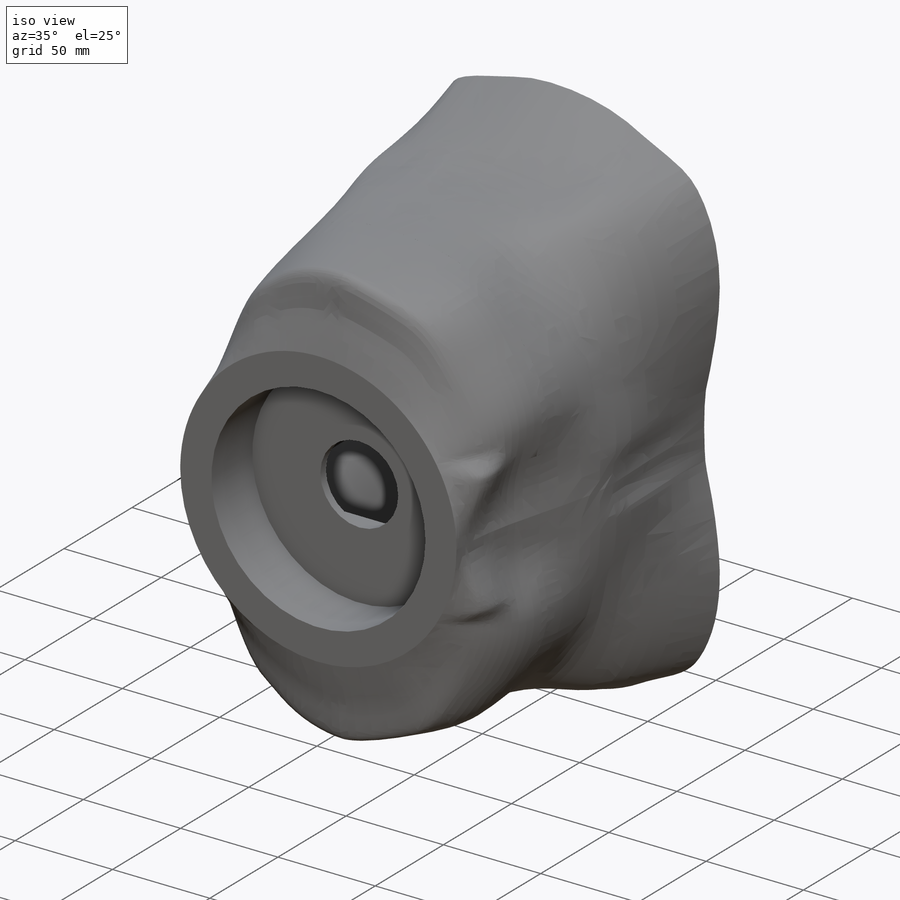
[diagram: iso view]
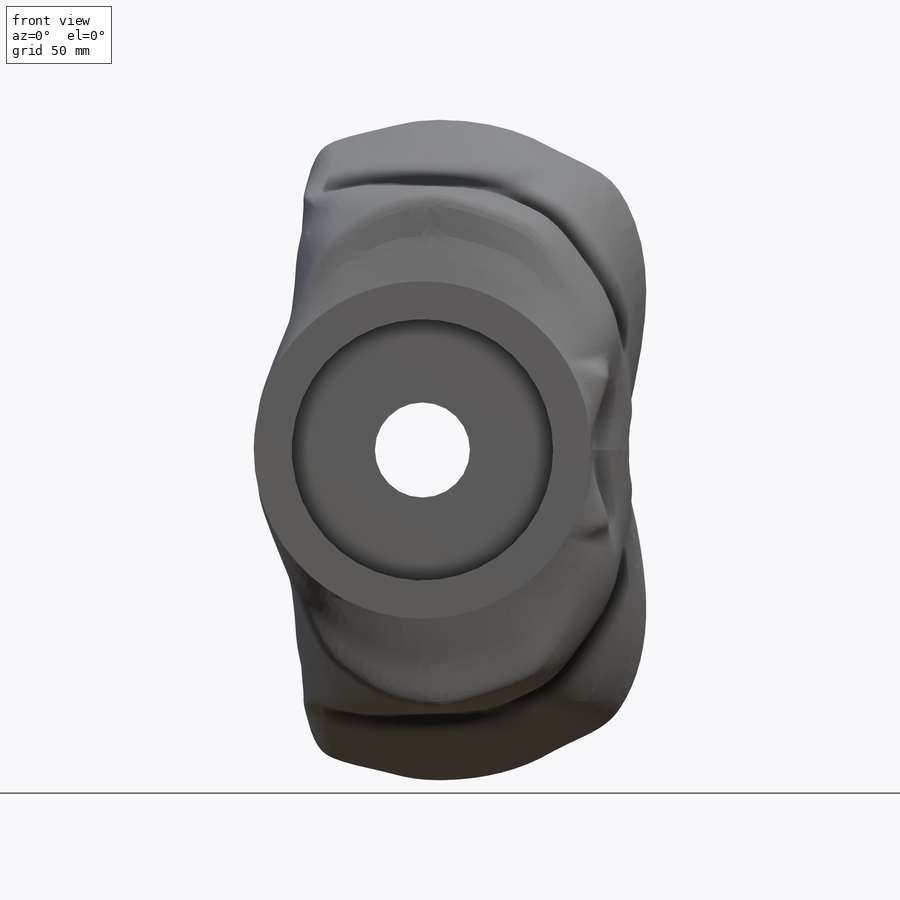
[diagram: front view]
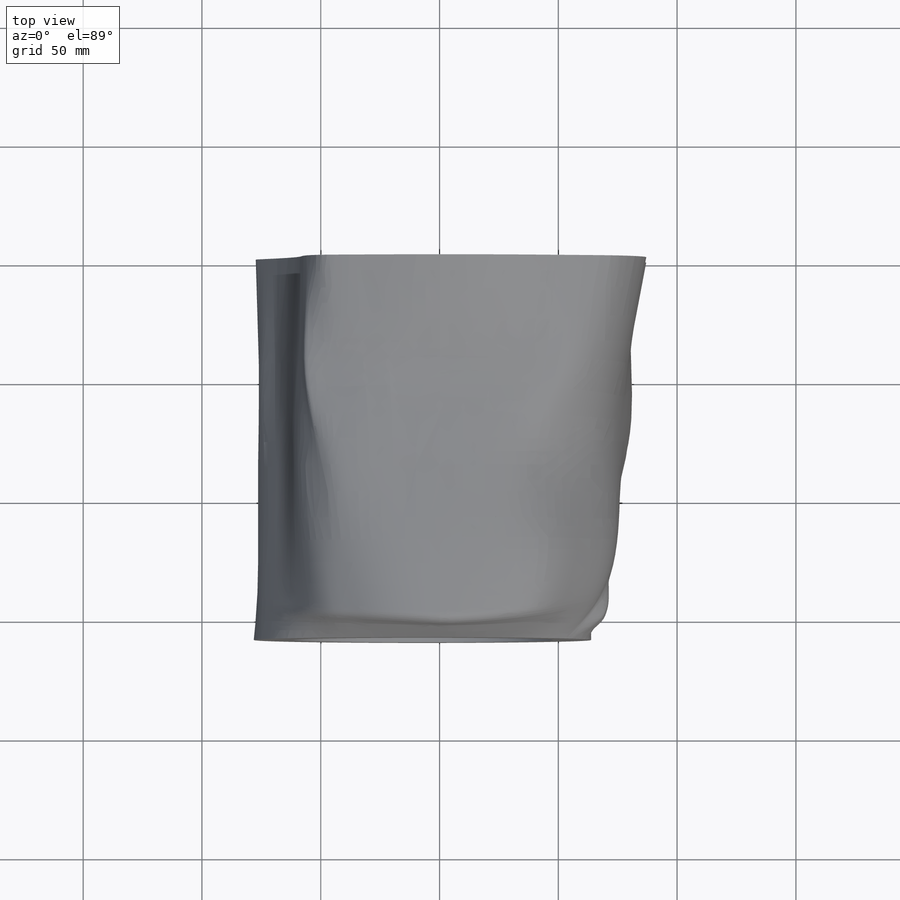
[diagram: top view]
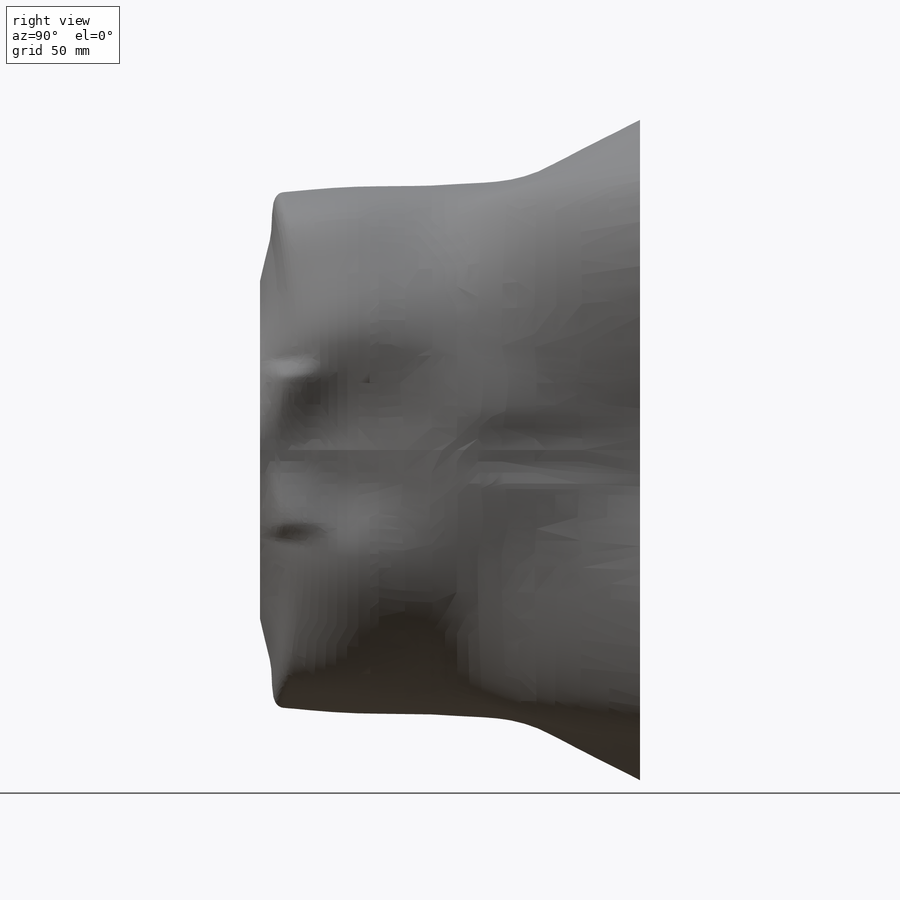
[diagram: right view]
SOLIDWORKS PART (.sldprt)
format: sldprt  version: not decoded by parser v0  size: 5,671,936 bytes
history: native  units: mm
features: sketch x29, extrude x11, plane x10, cut_extrude x8, mirror x4, material x1, move_body x1, shell x1, hole x1, fillet x1 + 1 further entry (+19 scaffold rows collapsed; 5 parser-record rows omitted)
feature tree (92):
  scaffold x19  (default folders/planes/origin — collapsed)
  material  "Material <not specified>"
  "middle section"
  parser-record x5  (decoder bookkeeping rows leaked as tree rows — omitted from the tree; the rows remain in map.json)
  move_body  "Body-Move/Copy2"
  sketch  "Sketch1"
  plane  "Plane1"  Offset=40mm
  plane  "Plane2"  Offset=80mm
  plane  "Plane3"  Offset=120mm
  plane  "Plane9"  Offset=30mm
  plane  "Plane4"  Offset=160mm
  plane  "Plane5"  Offset=200mm
  plane  "Plane6"  Offset=240mm
  plane  "Plane7"  Offset=280mm
  sketch  "Sketch9"
  sketch  "Sketch8"
  sketch  "Sketch6"
  sketch  "Sketch4"
  sketch  "Sketch2"  dims[D1=142.0mm]
  sketch  "Sketch3"
  plane  "Plane8"  Offset=30mm
  sketch  "Sketch7"
  mirror  "Mirror5"
  shell  "Shell1"  Thickness=4mm
  sketch  "Sketch10"  dims[D1=110.0mm]
  cut_extrude  "Extrude1"  Depth=30mm
  sketch  "Sketch11"  dims[D1=40.0mm]
  cut_extrude  "Extrude2"  Depth=60mm
  sketch  "Sketch12"  dims[D1=88.5mm D2=32.3mm D3=126.0mm D4=26.0mm]
  cut_extrude  "Extrude3"  Depth=16mm
  sketch  "Sketch13"  dims[D1=60.0mm]
  extrude  "Extrude4"  Depth=10mm
  sketch  "Sketch14"  dims[D1=0.0mm]
  extrude  "Extrude8"  [1 undecoded]
  sketch  "Sketch15"  dims[D1=10.2mm]
  cut_extrude  "Cut-Extrude1"  Depth=28mm
  sketch  "Sketch16"  dims[D1=4.0mm D2=4.0mm D3=18.2mm]
  extrude  "Extrude9"  Depth=13mm
  sketch  "Sketch18"
  extrude  "Extrude10"  Depth=4mm
  sketch  "Sketch20"
  extrude  "Extrude11"  Depth=4mm
  sketch  "Sketch21"  dims[D1=4.0mm D2=4.0mm D3=10.2mm]
  extrude  "Extrude12"  Depth=3mm
  sketch  "Sketch22"
  extrude  "Extrude13"  Depth=4mm
  sketch  "Sketch24"
  extrude  "Extrude15"  Depth=10.2mm
  sketch  "Sketch25"
  extrude  "Extrude16"  Depth=4mm
  hole  "Ø4.0 (4) Diameter Hole1"  Diameter=4mm Depth=15mm
  sketch  "3DSketch1"  dims[D1=4.6mm D2=4.5mm]
  sketch  "Sketch26"  dims[hole-wizard template sketch: 50 standard entries collapsed; hole parameters above]
  sketch  "Sketch27"  dims[D1=2.9mm D2=15.0mm D3=~20.389193mm]
  cut_extrude  "Extrude17"  Depth=10mm
  sketch  "Sketch28"  dims[D1=30.25mm D2=36.0mm D3=4.6mm D4=12.3mm D6=~3.620625mm D5=1.0mm]
  extrude  "Extrude18"  Depth=20mm
  sketch  "Sketch29"  dims[D1=4.0mm D2=5.0mm D3=5.0mm]
  cut_extrude  "Extrude19"  Depth=40mm
  fillet  "Fillet1"  Radius=15mm
  mirror  "Mirror8"
  mirror  "Mirror13"
  sketch  "Sketch31"  dims[D1=3.0mm]
  cut_extrude  "Cut-Extrude2"  Depth=17mm
  sketch  "Sketch32"  dims[D1=10.0mm]
  extrude  "Extrude22"  Depth=23mm
  sketch  "Sketch33"  dims[c1.D1=2.9mm c1.D2=4.0mm c1.D3=5.0mm c2.D2=5.0mm c2.D3=4.0mm]
  cut_extrude  "Extrude23"  Depth=18mm
  mirror  "Mirror23"
  plane  "Plane10"  Offset=0mm
decode coverage: 38 of 56 modeling features carry decoded parameters; 1 rows unclassified (native names shown)
note: ~ marks probable driven/reference dimensions
note: 1 parameter value undecoded
note: suppression state not decoded; provenance and decode notes live in map.json
